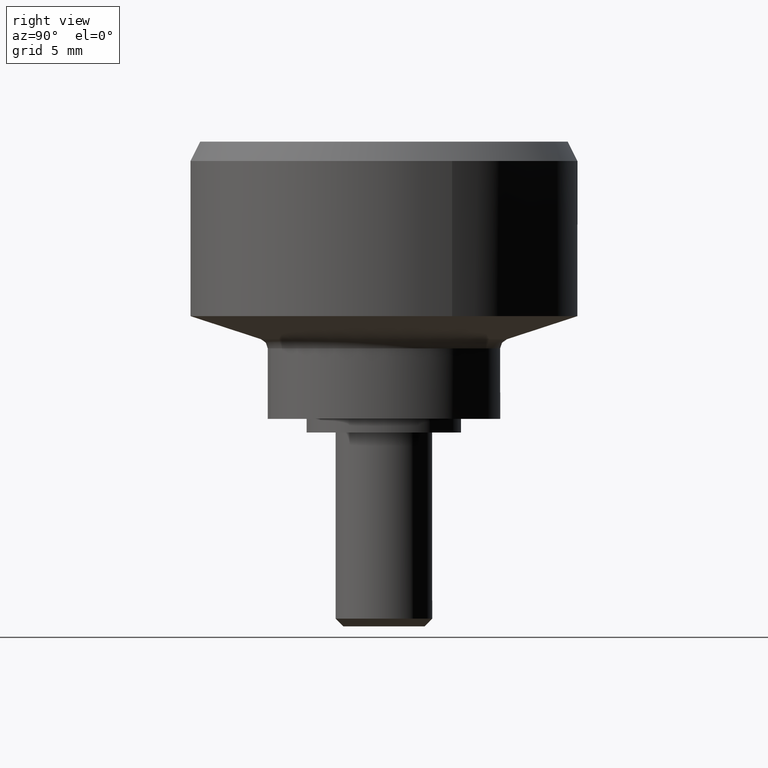
[diagram: clean part render]
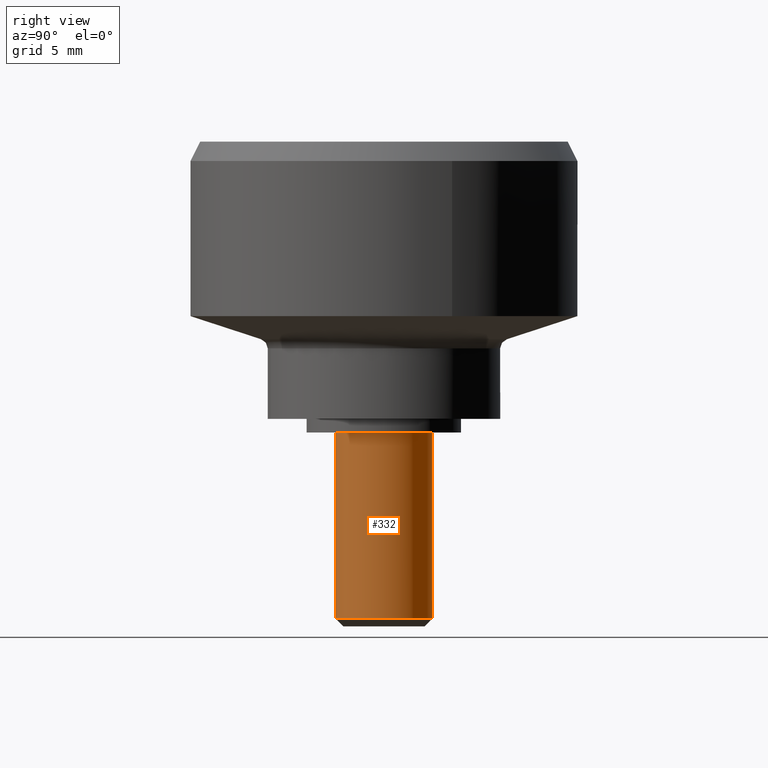
[diagram: same view with one face highlighted and labeled with its STEP entity id]
A machine part, right view. The second image highlights one B-rep face of the part: STEP entity #332.
In plain terms, the highlighted face is a freeform B-spline surface patch.
Its self-contained STEP definition (entity closure, byte-faithful):
#66=CARTESIAN_POINT('',(-0.295085586662852,2.482523815906674,-9.599997999999999));
#67=VERTEX_POINT('',#66);
#68=CARTESIAN_POINT('',(2.107600122147681,1.344626983639012,-9.599997999998584));
#69=VERTEX_POINT('',#68);
#70=CARTESIAN_POINT('',(-0.295085586662852,2.482523815906674,-9.599997999999999));
#71=CARTESIAN_POINT('',(-0.148060299150953,2.500000000000000,-9.599997999999998));
#72=CARTESIAN_POINT('',(0.0,2.500000000000000,-9.599997999999999));
#73=CARTESIAN_POINT('',(1.370484140001695,2.500000000000000,-9.599998000000001));
#74=CARTESIAN_POINT('',(2.107600122147681,1.344626983639012,-9.599997999998584));
#82=(BOUNDED_CURVE()B_SPLINE_CURVE(2,(#70,#71,#72,#73,#74),.UNSPECIFIED.,.F.,.U.)B_SPLINE_CURVE_WITH_KNOTS((3,2,3),(0.229562473512791,0.250000000000000,0.407950112624275),.UNSPECIFIED.)CURVE()GEOMETRIC_REPRESENTATION_ITEM()RATIONAL_B_SPLINE_CURVE((0.956026754182293,0.976055948330305,1.0,0.814949932406116,0.863729296952900))REPRESENTATION_ITEM(''));
#83=EDGE_CURVE('',#67,#69,#82,.T.);
#126=CARTESIAN_POINT('',(0.196147739405670,-2.492293334337277,-9.599997999988801));
#127=VERTEX_POINT('',#126);
#133=CARTESIAN_POINT('',(0.152621348862627,-2.495336996053108,-9.599997999999999));
#134=VERTEX_POINT('',#133);
#135=CARTESIAN_POINT('',(0.196147739405670,-2.492293334337278,-9.599997999988801));
#136=CARTESIAN_POINT('',(0.174397825005845,-2.494005089714098,-9.599998000000001));
#137=CARTESIAN_POINT('',(0.152621348862627,-2.495336996053108,-9.599997999999999));
#145=(BOUNDED_CURVE()B_SPLINE_CURVE(2,(#135,#136,#137),.UNSPECIFIED.,.F.,.U.)B_SPLINE_CURVE_WITH_KNOTS((3,3),(0.736331300621049,0.739332962238444),.UNSPECIFIED.)CURVE()GEOMETRIC_REPRESENTATION_ITEM()RATIONAL_B_SPLINE_CURVE((0.969723356147362,0.972855475549116,0.976072041665648))REPRESENTATION_ITEM(''));
#146=EDGE_CURVE('',#127,#134,#145,.T.);
#199=CARTESIAN_POINT('',(2.500000000000000,0.0,-9.599997999999999));
#200=VERTEX_POINT('',#199);
#201=CARTESIAN_POINT('',(2.107600122147681,1.344626983639012,-9.599997999998584));
#202=CARTESIAN_POINT('',(2.500000000000000,0.729570138477437,-9.599997999999999));
#203=CARTESIAN_POINT('',(2.500000000000000,0.0,-9.599997999999999));
#211=(BOUNDED_CURVE()B_SPLINE_CURVE(2,(#201,#202,#203),.UNSPECIFIED.,.F.,.U.)B_SPLINE_CURVE_WITH_KNOTS((3,3),(0.407950112624275,0.500000000000000),.UNSPECIFIED.)CURVE()GEOMETRIC_REPRESENTATION_ITEM()RATIONAL_B_SPLINE_CURVE((0.863729296952900,0.892156848780432,1.0))REPRESENTATION_ITEM(''));
#212=EDGE_CURVE('',#69,#200,#211,.T.);
#214=CARTESIAN_POINT('',(2.500000000000000,0.0,-9.599997999999999));
#215=CARTESIAN_POINT('',(2.500000000000000,-2.310976228987058,-9.599998000000001));
#216=CARTESIAN_POINT('',(0.196147739405670,-2.492293334337278,-9.599997999988801));
#224=(BOUNDED_CURVE()B_SPLINE_CURVE(2,(#214,#215,#216),.UNSPECIFIED.,.F.,.U.)B_SPLINE_CURVE_WITH_KNOTS((3,3),(0.500000000000000,0.736331300621049),.UNSPECIFIED.)CURVE()GEOMETRIC_REPRESENTATION_ITEM()RATIONAL_B_SPLINE_CURVE((1.0,0.723120658618925,0.969723356147361))REPRESENTATION_ITEM(''));
#225=EDGE_CURVE('',#200,#127,#224,.T.);
#260=CARTESIAN_POINT('',(-0.295085586641896,2.482523815909166,0.239999950000000));
#261=CARTESIAN_POINT('',(-0.224036821594944,2.490969038621514,0.239999950000000));
#262=CARTESIAN_POINT('',(-0.152621348837143,2.495336996054667,0.239999950000000));
#263=CARTESIAN_POINT('',(2.342715647217524,2.647958344891809,0.239999950000000));
#264=CARTESIAN_POINT('',(2.495336996054667,0.152621348837143,0.239999950000000));
#265=CARTESIAN_POINT('',(2.647958344891809,-2.342715647217524,0.239999950000000));
#266=CARTESIAN_POINT('',(0.152621348837143,-2.495336996054667,0.239999950000000));
#267=CARTESIAN_POINT('',(-0.295085586641896,2.482523815909166,-9.845997948750004));
#268=CARTESIAN_POINT('',(-0.224036821594944,2.490969038621514,-9.845997948750002));
#269=CARTESIAN_POINT('',(-0.152621348837143,2.495336996054667,-9.845997948750002));
#270=CARTESIAN_POINT('',(2.342715647217524,2.647958344891809,-9.845997948750002));
#271=CARTESIAN_POINT('',(2.495336996054667,0.152621348837143,-9.845997948750002));
#272=CARTESIAN_POINT('',(2.647958344891809,-2.342715647217524,-9.845997948750002));
#273=CARTESIAN_POINT('',(0.152621348837143,-2.495336996054667,-9.845997948750002));
#281=(BOUNDED_SURFACE()B_SPLINE_SURFACE(2,1,((#260,#267),(#261,#268),(#262,#269),(#263,#270),(#264,#271),(#265,#272),(#266,#273)),.UNSPECIFIED.,.F.,.F.,.U.)B_SPLINE_SURFACE_WITH_KNOTS((3,2,2,3),(2,2),(0.0,0.165685424949238,4.307821048680188,8.449956672411137),(0.0,10.085997898750000),.UNSPECIFIED.)GEOMETRIC_REPRESENTATION_ITEM()RATIONAL_B_SPLINE_SURFACE(((0.977505800795127,0.977505800795127),(0.988284271247462,0.988284271247462),(1.0,1.0),(0.707106781186548,0.707106781186548),(1.0,1.0),(0.707106781186548,0.707106781186548),(1.0,1.0)))REPRESENTATION_ITEM('')SURFACE());
#282=ORIENTED_EDGE('',*,*,#83,.F.);
#283=CARTESIAN_POINT('',(-0.295085586662852,2.482523815906674,3.123371E-016));
#284=VERTEX_POINT('',#283);
#285=CARTESIAN_POINT('',(-0.295085586662852,2.482523815906674,3.123371E-016));
#286=CARTESIAN_POINT('',(-0.295085586662852,2.482523815906674,-9.599997999999999));
#287=QUASI_UNIFORM_CURVE('',1,(#285,#286),.UNSPECIFIED.,.F.,.U.);
#288=EDGE_CURVE('',#284,#67,#287,.T.);
#289=ORIENTED_EDGE('',*,*,#288,.F.);
#290=CARTESIAN_POINT('',(2.500000000000000,0.0,0.0));
#291=VERTEX_POINT('',#290);
#292=CARTESIAN_POINT('',(-0.295085586662852,2.482523815906674,3.123371E-016));
#293=CARTESIAN_POINT('',(-0.148060299150953,2.500000000000000,0.0));
#294=CARTESIAN_POINT('',(0.0,2.500000000000000,0.0));
#295=CARTESIAN_POINT('',(2.500000000000000,2.500000000000000,0.0));
#296=CARTESIAN_POINT('',(2.500000000000000,0.0,0.0));
#304=(BOUNDED_CURVE()B_SPLINE_CURVE(2,(#292,#293,#294,#295,#296),.UNSPECIFIED.,.F.,.U.)B_SPLINE_CURVE_WITH_KNOTS((3,2,3),(0.229562473512791,0.250000000000000,0.500000000000000),.UNSPECIFIED.)CURVE()GEOMETRIC_REPRESENTATION_ITEM()RATIONAL_B_SPLINE_CURVE((0.956026754182293,0.976055948330305,1.0,0.707106781186548,1.0))REPRESENTATION_ITEM(''));
#305=EDGE_CURVE('',#284,#291,#304,.T.);
#306=ORIENTED_EDGE('',*,*,#305,.T.);
#307=CARTESIAN_POINT('',(0.152621348862626,-2.495336996053108,3.191891E-016));
#308=VERTEX_POINT('',#307);
#309=CARTESIAN_POINT('',(2.500000000000000,0.0,0.0));
#310=CARTESIAN_POINT('',(2.500000000000000,-2.351765167216101,0.0));
#311=CARTESIAN_POINT('',(0.152621348862626,-2.495336996053109,3.191891E-016));
#319=(BOUNDED_CURVE()B_SPLINE_CURVE(2,(#309,#310,#311),.UNSPECIFIED.,.F.,.U.)B_SPLINE_CURVE_WITH_KNOTS((3,3),(0.500000000000000,0.739332962238443),.UNSPECIFIED.)CURVE()GEOMETRIC_REPRESENTATION_ITEM()RATIONAL_B_SPLINE_CURVE((1.0,0.719603993287296,0.976072041665647))REPRESENTATION_ITEM(''));
#320=EDGE_CURVE('',#291,#308,#319,.T.);
#321=ORIENTED_EDGE('',*,*,#320,.T.);
#322=CARTESIAN_POINT('',(0.152621348862626,-2.495336996053108,3.191891E-016));
#323=CARTESIAN_POINT('',(0.152621348862627,-2.495336996053108,-9.599997999999999));
#324=QUASI_UNIFORM_CURVE('',1,(#322,#323),.UNSPECIFIED.,.F.,.U.);
#325=EDGE_CURVE('',#308,#134,#324,.T.);
#326=ORIENTED_EDGE('',*,*,#325,.T.);
#327=ORIENTED_EDGE('',*,*,#146,.F.);
#328=ORIENTED_EDGE('',*,*,#225,.F.);
#329=ORIENTED_EDGE('',*,*,#212,.F.);
#330=EDGE_LOOP('',(#282,#289,#306,#321,#326,#327,#328,#329));
#331=FACE_OUTER_BOUND('',#330,.T.);
#332=ADVANCED_FACE('',(#331),#281,.T.);